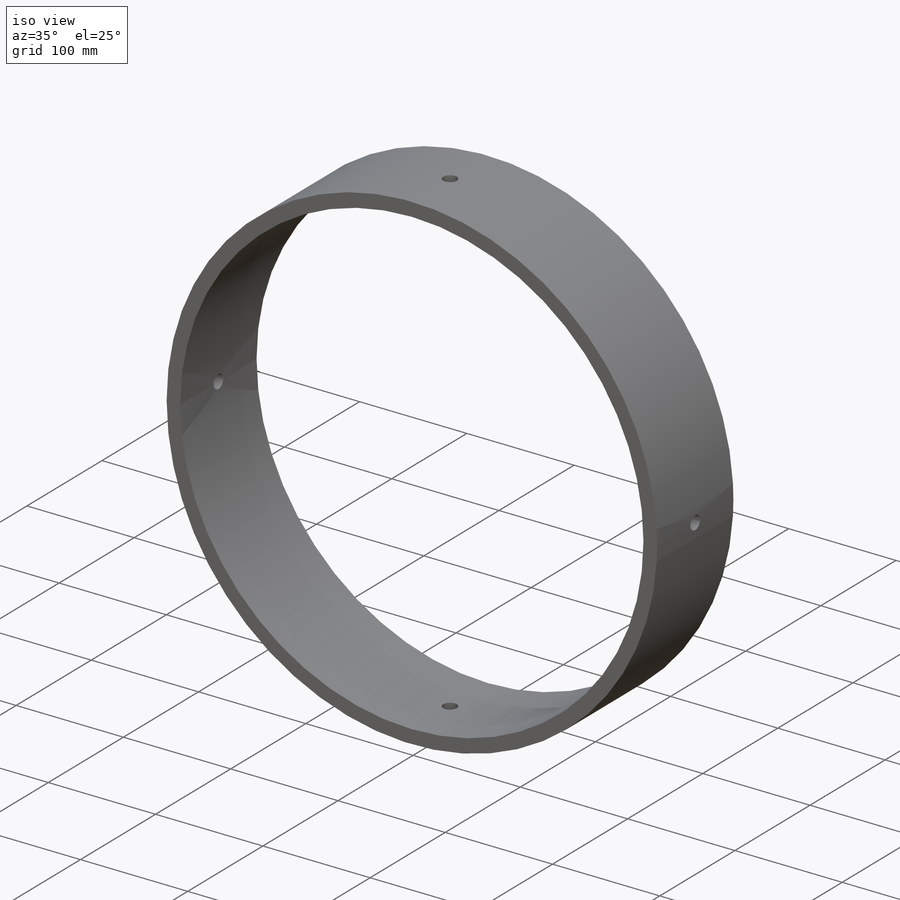
[diagram: iso view]
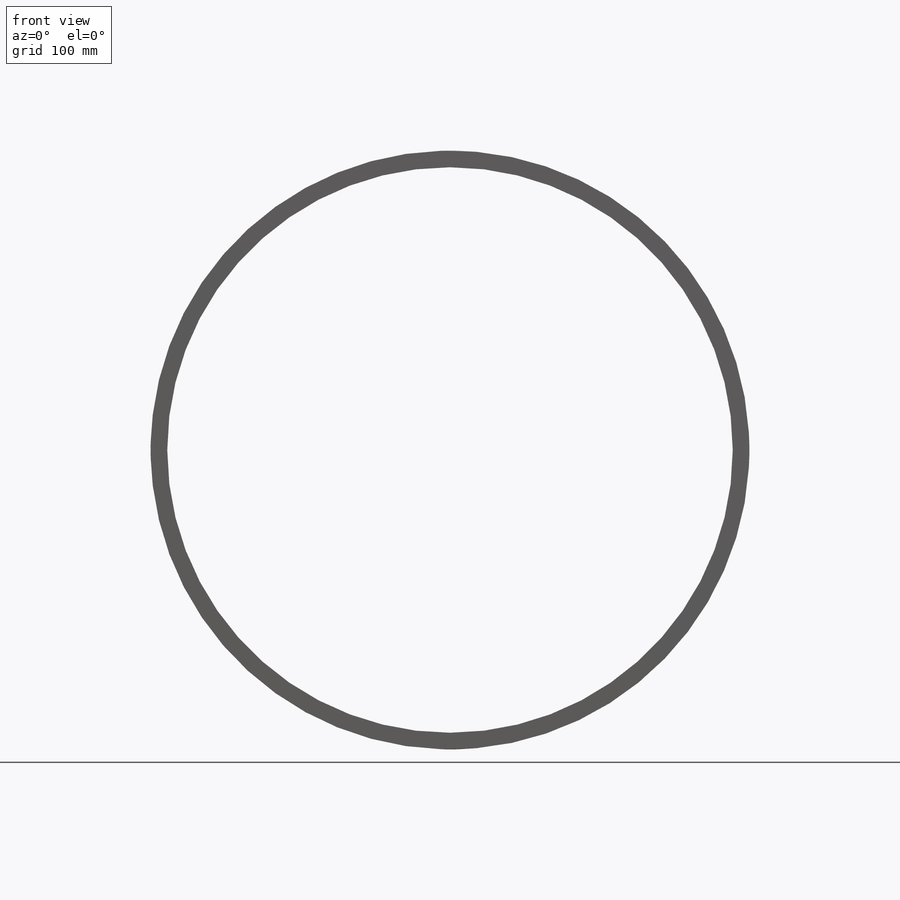
[diagram: front view]
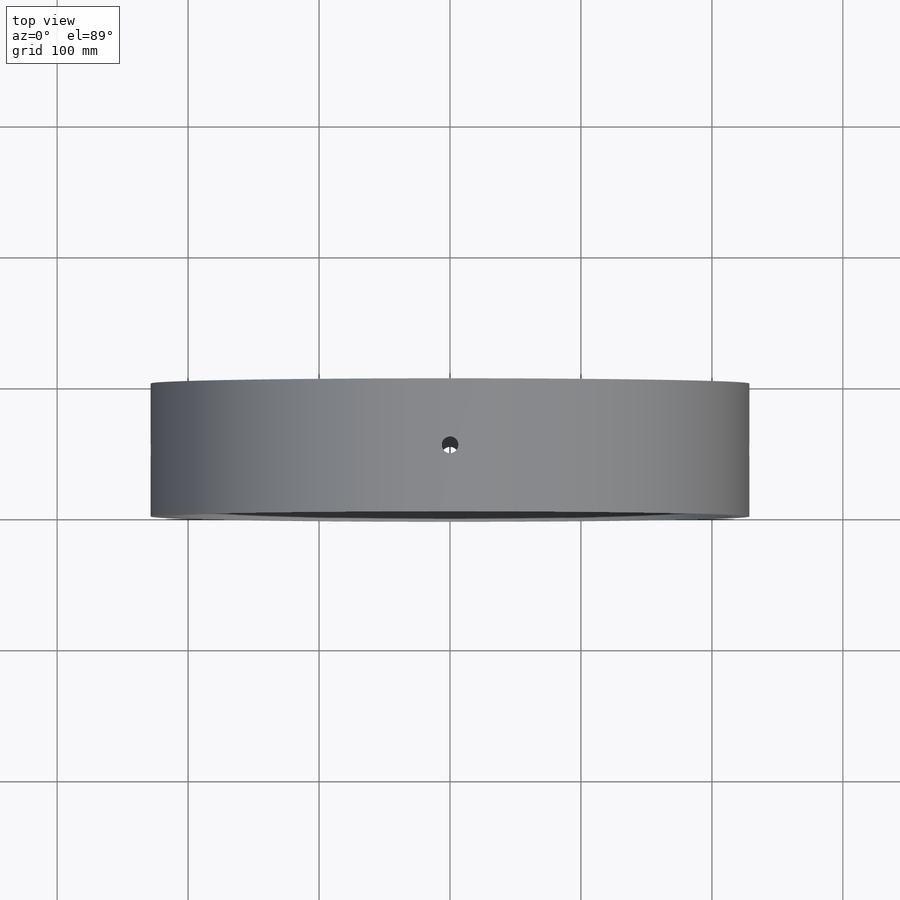
[diagram: top view]
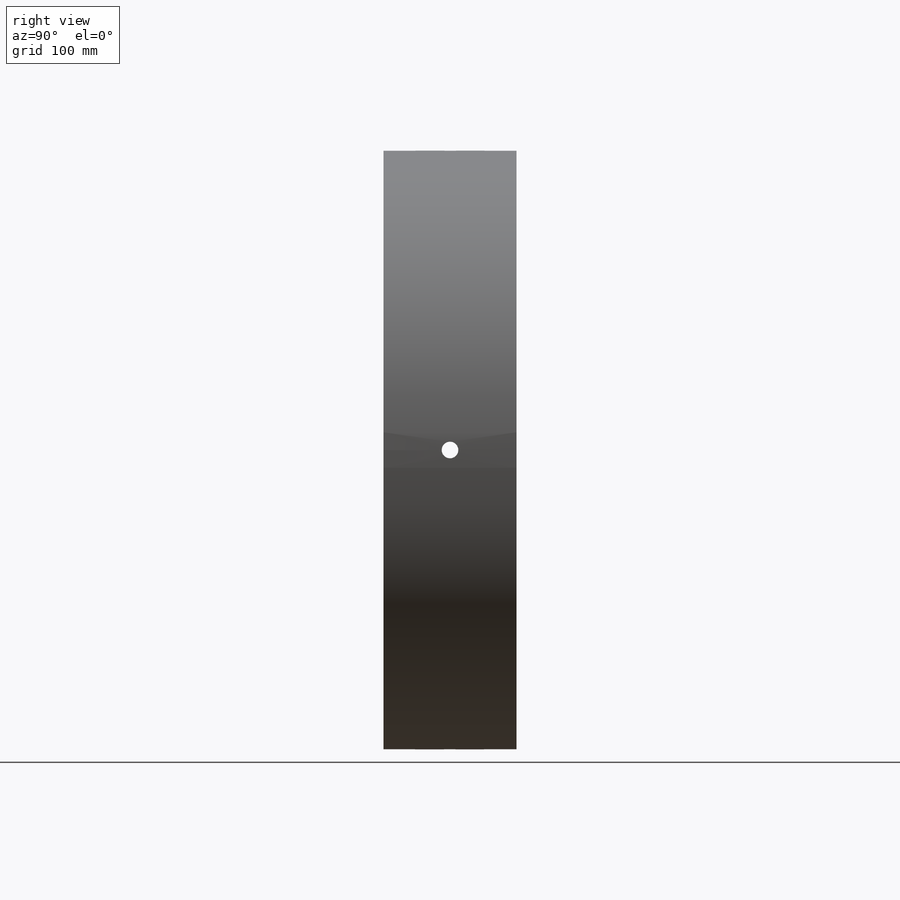
[diagram: right view]
SOLIDWORKS PART (.sldprt)
format: sldprt  version: not decoded by parser v0  size: 201,216 bytes
history: native  units: mm
features: sketch x4, cut_extrude x3, plane x3, material x1, extrude x1 (+11 scaffold rows collapsed)
feature tree (23):
  scaffold x11  (default folders/planes/origin — collapsed)
  material  "6061 Alloy"
  sketch  "Sketch1"  dims[D1=457.2mm]
  extrude  "Boss-Extrude1"  Depth=101.6mm
  sketch  "Sketch2"  dims[D1=12.7mm]
  cut_extrude  "Cut-Extrude1"  [1 undecoded]
  plane  "Plane1"  Offset=228.6mm
  plane  "Plane2"  Offset=457.2mm
  sketch  "Sketch3"  dims[D1=12.7mm D2=50.8mm]
  cut_extrude  "Cut-Extrude2"  [1 undecoded]
  plane  "Plane3"
  sketch  "Sketch4"  dims[D1=12.7mm D2=50.8mm D3=228.6mm]
  cut_extrude  "Cut-Extrude3"  [1 undecoded]
decode coverage: 5 of 8 modeling features carry decoded parameters
note: 3 parameter values undecoded
summary: no parameter record found for 3 features
note: suppression state not decoded; provenance and decode notes live in map.json
